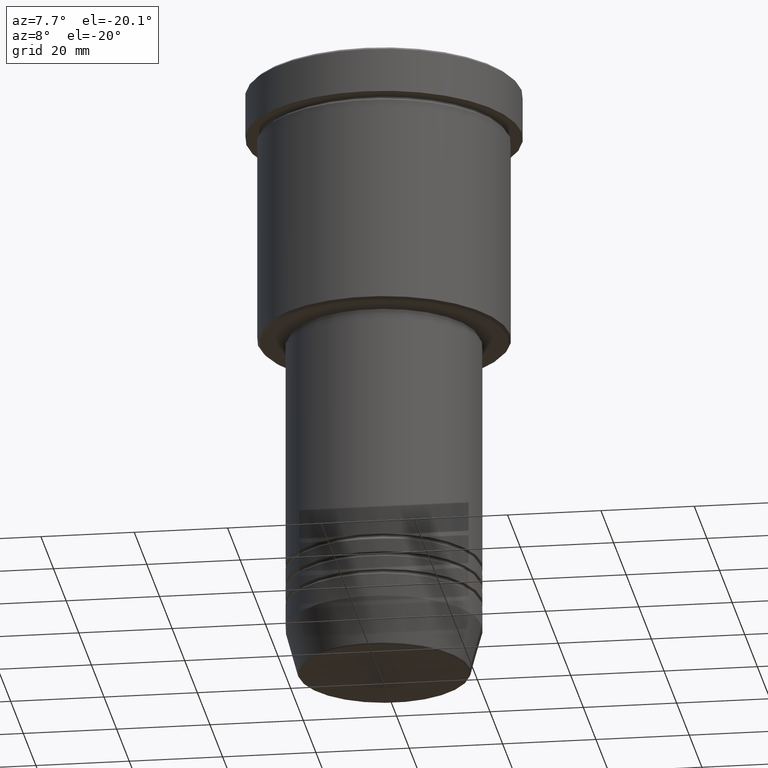
[diagram: clean part render]
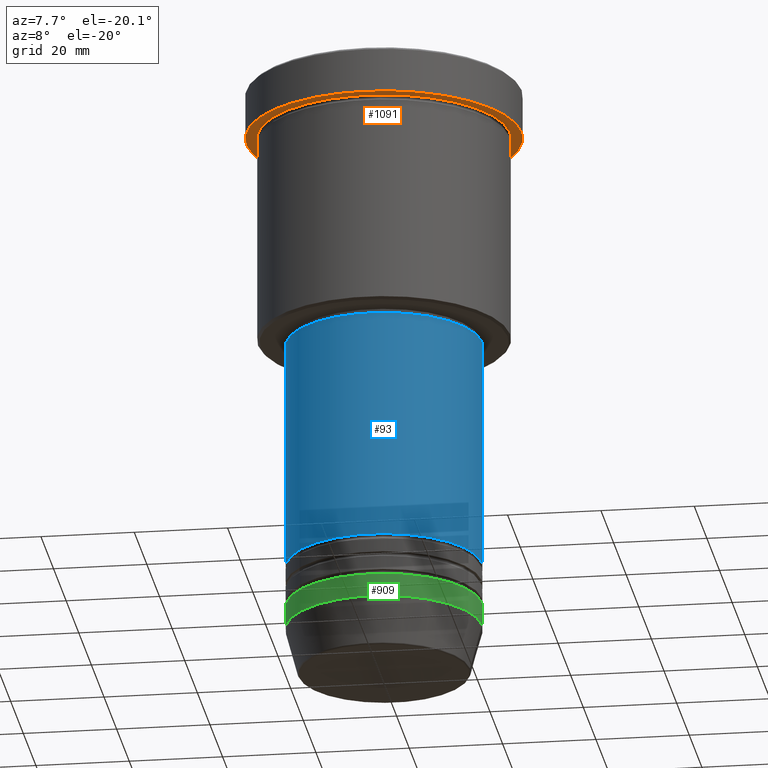
[diagram: same view with three faces highlighted in distinct colors, each labeled with its STEP entity id]
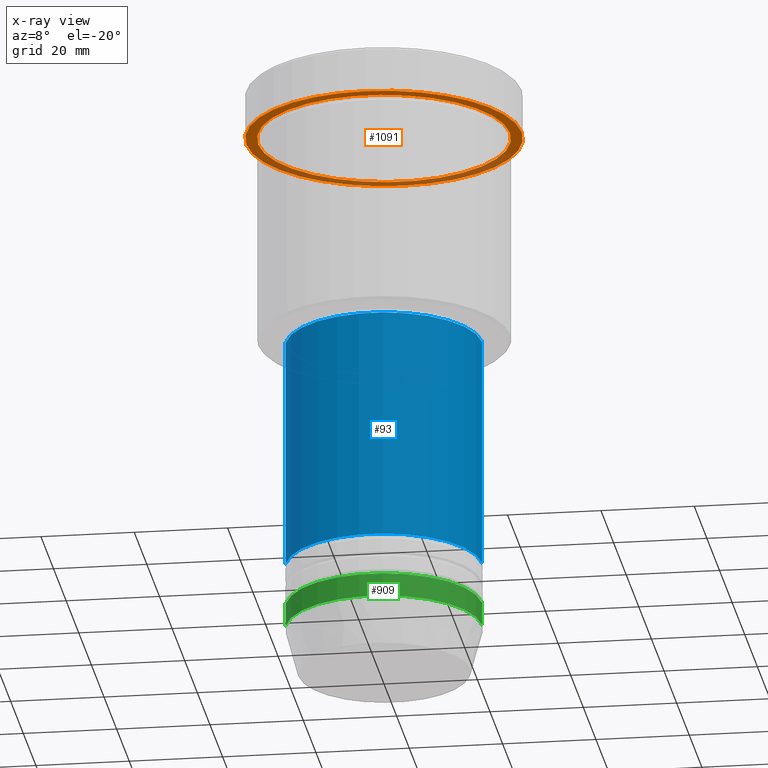
[diagram: x-ray of the same camera — body ghosted, the three highlighted faces saturated]
A machine part, auxiliary view with three faces highlighted in distinct colors.
The next image is the same camera in x-ray (body ghosted, the three faces saturated) — at least one of them is partly hidden behind the body in this view.
Their STEP definitions:

[orange] entity #1091 — the highlighted planar face has unit normal (0, 0, -1).
#78 = EDGE_CURVE ( 'NONE', #1008, #699, #409, .T. ) ;
#94 = AXIS2_PLACEMENT_3D ( 'NONE', #369, #580, #1101 ) ;
#113 = CARTESIAN_POINT ( 'NONE',  ( 0.000000000000000000, 29.50000000000000000, -9.999999999999992895 ) ) ;
#149 = DIRECTION ( 'NONE',  ( -0.000000000000000000, -0.000000000000000000, 1.000000000000000000 ) ) ;
#162 = ORIENTED_EDGE ( 'NONE', *, *, #672, .T. ) ;
#241 = CIRCLE ( 'NONE', #94, 29.50000000000000000 ) ;
#252 = AXIS2_PLACEMENT_3D ( 'NONE', #440, #149, #813 ) ;
#263 = DIRECTION ( 'NONE',  ( -0.000000000000000000, -0.000000000000000000, 1.000000000000000000 ) ) ;
#291 = PLANE ( 'NONE',  #457 ) ;
#296 = ORIENTED_EDGE ( 'NONE', *, *, #581, .F. ) ;
#301 = ORIENTED_EDGE ( 'NONE', *, *, #78, .T. ) ;
#305 = CIRCLE ( 'NONE', #1119, 29.50000000000000000 ) ;
#340 = ORIENTED_EDGE ( 'NONE', *, *, #881, .F. ) ;
#369 = CARTESIAN_POINT ( 'NONE',  ( 0.000000000000000000, 0.000000000000000000, -9.999999999999992895 ) ) ;
#402 = CIRCLE ( 'NONE', #610, 27.00000000000000355 ) ;
#409 = CIRCLE ( 'NONE', #252, 27.00000000000000355 ) ;
#440 = CARTESIAN_POINT ( 'NONE',  ( 0.000000000000000000, 0.000000000000000000, -9.999999999999992895 ) ) ;
#457 = AXIS2_PLACEMENT_3D ( 'NONE', #113, #480, #486 ) ;
#467 = CARTESIAN_POINT ( 'NONE',  ( 27.00000000000000355, 3.306546357697854128E-15, -9.999999999999992895 ) ) ;
#475 = FACE_BOUND ( 'NONE', #843, .T. ) ;
#480 = DIRECTION ( 'NONE',  ( 0.000000000000000000, 0.000000000000000000, -1.000000000000000000 ) ) ;
#486 = DIRECTION ( 'NONE',  ( -1.000000000000000000, 0.000000000000000000, -0.000000000000000000 ) ) ;
#558 = FACE_OUTER_BOUND ( 'NONE', #875, .T. ) ;
#580 = DIRECTION ( 'NONE',  ( -0.000000000000000000, -0.000000000000000000, 1.000000000000000000 ) ) ;
#581 = EDGE_CURVE ( 'NONE', #1126, #1006, #241, .T. ) ;
#610 = AXIS2_PLACEMENT_3D ( 'NONE', #920, #859, #1018 ) ;
#656 = CARTESIAN_POINT ( 'NONE',  ( -29.50000000000000000, 3.612708057484691604E-15, -9.999999999999992895 ) ) ;
#672 = EDGE_CURVE ( 'NONE', #699, #1008, #402, .T. ) ;
#699 = VERTEX_POINT ( 'NONE', #1121 ) ;
#716 = CARTESIAN_POINT ( 'NONE',  ( 0.000000000000000000, 0.000000000000000000, -9.999999999999992895 ) ) ;
#770 = CARTESIAN_POINT ( 'NONE',  ( 29.50000000000000000, 0.000000000000000000, -9.999999999999992895 ) ) ;
#813 = DIRECTION ( 'NONE',  ( -1.000000000000000000, 0.000000000000000000, 0.000000000000000000 ) ) ;
#843 = EDGE_LOOP ( 'NONE', ( #162, #301 ) ) ;
#859 = DIRECTION ( 'NONE',  ( -0.000000000000000000, -0.000000000000000000, 1.000000000000000000 ) ) ;
#875 = EDGE_LOOP ( 'NONE', ( #296, #340 ) ) ;
#881 = EDGE_CURVE ( 'NONE', #1006, #1126, #305, .T. ) ;
#920 = CARTESIAN_POINT ( 'NONE',  ( 0.000000000000000000, 0.000000000000000000, -9.999999999999992895 ) ) ;
#1006 = VERTEX_POINT ( 'NONE', #656 ) ;
#1008 = VERTEX_POINT ( 'NONE', #467 ) ;
#1018 = DIRECTION ( 'NONE',  ( -1.000000000000000000, 0.000000000000000000, 0.000000000000000000 ) ) ;
#1091 = ADVANCED_FACE ( 'NONE', ( #475, #558 ), #291, .T. ) ;
#1101 = DIRECTION ( 'NONE',  ( 1.000000000000000000, 0.000000000000000000, 0.000000000000000000 ) ) ;
#1119 = AXIS2_PLACEMENT_3D ( 'NONE', #716, #263, #1169 ) ;
#1121 = CARTESIAN_POINT ( 'NONE',  ( -27.00000000000000355, 0.000000000000000000, -9.999999999999992895 ) ) ;
#1126 = VERTEX_POINT ( 'NONE', #770 ) ;
#1169 = DIRECTION ( 'NONE',  ( 1.000000000000000000, 0.000000000000000000, 0.000000000000000000 ) ) ;

[blue] entity #93 — the highlighted cylindrical surface (partial cylindrical patch) has radius 21 mm, axis along (-0, -0, 1).
#5 = LINE ( 'NONE', #826, #1005 ) ;
#32 = EDGE_CURVE ( 'NONE', #661, #927, #448, .T. ) ;
#66 = DIRECTION ( 'NONE',  ( 1.000000000000000000, 0.000000000000000000, 0.000000000000000000 ) ) ;
#68 = EDGE_CURVE ( 'NONE', #652, #474, #107, .T. ) ;
#73 = DIRECTION ( 'NONE',  ( -0.000000000000000000, -0.000000000000000000, 1.000000000000000000 ) ) ;
#93 = ADVANCED_FACE ( 'NONE', ( #519 ), #1057, .T. ) ;
#107 = CIRCLE ( 'NONE', #603, 21.00000000000000000 ) ;
#160 = CARTESIAN_POINT ( 'NONE',  ( 0.000000000000000000, 0.000000000000000000, -106.9999999999998863 ) ) ;
#164 = EDGE_CURVE ( 'NONE', #474, #927, #5, .T. ) ;
#171 = CARTESIAN_POINT ( 'NONE',  ( 0.000000000000000000, 0.000000000000000000, -56.99999999999998579 ) ) ;
#236 = CARTESIAN_POINT ( 'NONE',  ( 0.000000000000000000, 0.000000000000000000, 0.000000000000000000 ) ) ;
#255 = AXIS2_PLACEMENT_3D ( 'NONE', #236, #266, #1142 ) ;
#266 = DIRECTION ( 'NONE',  ( -0.000000000000000000, -0.000000000000000000, 1.000000000000000000 ) ) ;
#328 = EDGE_LOOP ( 'NONE', ( #557, #431, #378, #937 ) ) ;
#350 = CARTESIAN_POINT ( 'NONE',  ( 20.99999999999999645, 0.000000000000000000, -56.99999999999998579 ) ) ;
#378 = ORIENTED_EDGE ( 'NONE', *, *, #164, .T. ) ;
#424 = AXIS2_PLACEMENT_3D ( 'NONE', #171, #1157, #66 ) ;
#431 = ORIENTED_EDGE ( 'NONE', *, *, #68, .T. ) ;
#448 = CIRCLE ( 'NONE', #424, 20.99999999999999645 ) ;
#452 = EDGE_CURVE ( 'NONE', #652, #661, #1001, .T. ) ;
#474 = VERTEX_POINT ( 'NONE', #1151 ) ;
#519 = FACE_OUTER_BOUND ( 'NONE', #328, .T. ) ;
#557 = ORIENTED_EDGE ( 'NONE', *, *, #452, .F. ) ;
#603 = AXIS2_PLACEMENT_3D ( 'NONE', #160, #73, #631 ) ;
#631 = DIRECTION ( 'NONE',  ( 1.000000000000000000, 0.000000000000000000, 0.000000000000000000 ) ) ;
#647 = CARTESIAN_POINT ( 'NONE',  ( -20.99999999999999645, 2.571758278209441267E-15, 0.000000000000000000 ) ) ;
#652 = VERTEX_POINT ( 'NONE', #653 ) ;
#653 = CARTESIAN_POINT ( 'NONE',  ( -21.00000000000000000, 2.571758278209441661E-15, -106.9999999999998863 ) ) ;
#661 = VERTEX_POINT ( 'NONE', #928 ) ;
#826 = CARTESIAN_POINT ( 'NONE',  ( 20.99999999999999645, 0.000000000000000000, 0.000000000000000000 ) ) ;
#854 = DIRECTION ( 'NONE',  ( -0.000000000000000000, -0.000000000000000000, 1.000000000000000000 ) ) ;
#882 = VECTOR ( 'NONE', #1166, 1000.000000000000000 ) ;
#927 = VERTEX_POINT ( 'NONE', #350 ) ;
#928 = CARTESIAN_POINT ( 'NONE',  ( -20.99999999999999645, 2.571758278209441267E-15, -56.99999999999998579 ) ) ;
#937 = ORIENTED_EDGE ( 'NONE', *, *, #32, .F. ) ;
#1001 = LINE ( 'NONE', #647, #882 ) ;
#1005 = VECTOR ( 'NONE', #854, 1000.000000000000000 ) ;
#1057 = CYLINDRICAL_SURFACE ( 'NONE', #255, 20.99999999999999645 ) ;
#1142 = DIRECTION ( 'NONE',  ( 1.000000000000000000, 0.000000000000000000, 0.000000000000000000 ) ) ;
#1151 = CARTESIAN_POINT ( 'NONE',  ( 21.00000000000000000, 0.000000000000000000, -106.9999999999998863 ) ) ;
#1157 = DIRECTION ( 'NONE',  ( -0.000000000000000000, -0.000000000000000000, 1.000000000000000000 ) ) ;
#1166 = DIRECTION ( 'NONE',  ( -0.000000000000000000, -0.000000000000000000, 1.000000000000000000 ) ) ;

[green] entity #909 — the highlighted cylindrical surface (partial cylindrical patch) has radius 21 mm, axis along (-0, -0, 1).
#9 = CARTESIAN_POINT ( 'NONE',  ( 0.000000000000000000, 0.000000000000000000, -121.0000000000000000 ) ) ;
#26 = EDGE_CURVE ( 'NONE', #749, #1046, #299, .T. ) ;
#71 = DIRECTION ( 'NONE',  ( -0.000000000000000000, -0.000000000000000000, 1.000000000000000000 ) ) ;
#178 = CIRCLE ( 'NONE', #683, 21.00000000000000000 ) ;
#191 = ORIENTED_EDGE ( 'NONE', *, *, #560, .T. ) ;
#201 = CARTESIAN_POINT ( 'NONE',  ( -21.00000000000000000, 2.571758278209441661E-15, 0.000000000000000000 ) ) ;
#242 = EDGE_CURVE ( 'NONE', #532, #253, #178, .T. ) ;
#251 = CARTESIAN_POINT ( 'NONE',  ( 0.000000000000000000, 0.000000000000000000, -115.9999999999999858 ) ) ;
#253 = VERTEX_POINT ( 'NONE', #1071 ) ;
#269 = LINE ( 'NONE', #1174, #657 ) ;
#299 = CIRCLE ( 'NONE', #963, 21.00000000000000000 ) ;
#377 = DIRECTION ( 'NONE',  ( 1.000000000000000000, 0.000000000000000000, 0.000000000000000000 ) ) ;
#430 = DIRECTION ( 'NONE',  ( 1.000000000000000000, 0.000000000000000000, 0.000000000000000000 ) ) ;
#438 = DIRECTION ( 'NONE',  ( -0.000000000000000000, -0.000000000000000000, 1.000000000000000000 ) ) ;
#532 = VERTEX_POINT ( 'NONE', #996 ) ;
#560 = EDGE_CURVE ( 'NONE', #253, #1046, #269, .T. ) ;
#562 = LINE ( 'NONE', #201, #973 ) ;
#589 = ORIENTED_EDGE ( 'NONE', *, *, #664, .F. ) ;
#596 = CARTESIAN_POINT ( 'NONE',  ( -21.00000000000000000, 2.571758278209441661E-15, -115.9999999999999858 ) ) ;
#642 = DIRECTION ( 'NONE',  ( -0.000000000000000000, -0.000000000000000000, 1.000000000000000000 ) ) ;
#650 = CARTESIAN_POINT ( 'NONE',  ( 21.00000000000000000, 0.000000000000000000, -115.9999999999999858 ) ) ;
#657 = VECTOR ( 'NONE', #642, 1000.000000000000000 ) ;
#664 = EDGE_CURVE ( 'NONE', #532, #749, #562, .T. ) ;
#683 = AXIS2_PLACEMENT_3D ( 'NONE', #9, #438, #377 ) ;
#710 = DIRECTION ( 'NONE',  ( 1.000000000000000000, 0.000000000000000000, 0.000000000000000000 ) ) ;
#732 = DIRECTION ( 'NONE',  ( -0.000000000000000000, -0.000000000000000000, 1.000000000000000000 ) ) ;
#749 = VERTEX_POINT ( 'NONE', #596 ) ;
#769 = DIRECTION ( 'NONE',  ( -0.000000000000000000, -0.000000000000000000, 1.000000000000000000 ) ) ;
#824 = CYLINDRICAL_SURFACE ( 'NONE', #1027, 21.00000000000000000 ) ;
#846 = ORIENTED_EDGE ( 'NONE', *, *, #26, .F. ) ;
#909 = ADVANCED_FACE ( 'NONE', ( #1056 ), #824, .T. ) ;
#963 = AXIS2_PLACEMENT_3D ( 'NONE', #251, #732, #710 ) ;
#973 = VECTOR ( 'NONE', #769, 1000.000000000000000 ) ;
#980 = EDGE_LOOP ( 'NONE', ( #589, #1139, #191, #846 ) ) ;
#996 = CARTESIAN_POINT ( 'NONE',  ( -21.00000000000000000, 2.571758278209441661E-15, -121.0000000000000000 ) ) ;
#998 = CARTESIAN_POINT ( 'NONE',  ( 0.000000000000000000, 0.000000000000000000, 0.000000000000000000 ) ) ;
#1027 = AXIS2_PLACEMENT_3D ( 'NONE', #998, #71, #430 ) ;
#1046 = VERTEX_POINT ( 'NONE', #650 ) ;
#1056 = FACE_OUTER_BOUND ( 'NONE', #980, .T. ) ;
#1071 = CARTESIAN_POINT ( 'NONE',  ( 21.00000000000000000, 0.000000000000000000, -121.0000000000000000 ) ) ;
#1139 = ORIENTED_EDGE ( 'NONE', *, *, #242, .T. ) ;
#1174 = CARTESIAN_POINT ( 'NONE',  ( 21.00000000000000000, 0.000000000000000000, 0.000000000000000000 ) ) ;